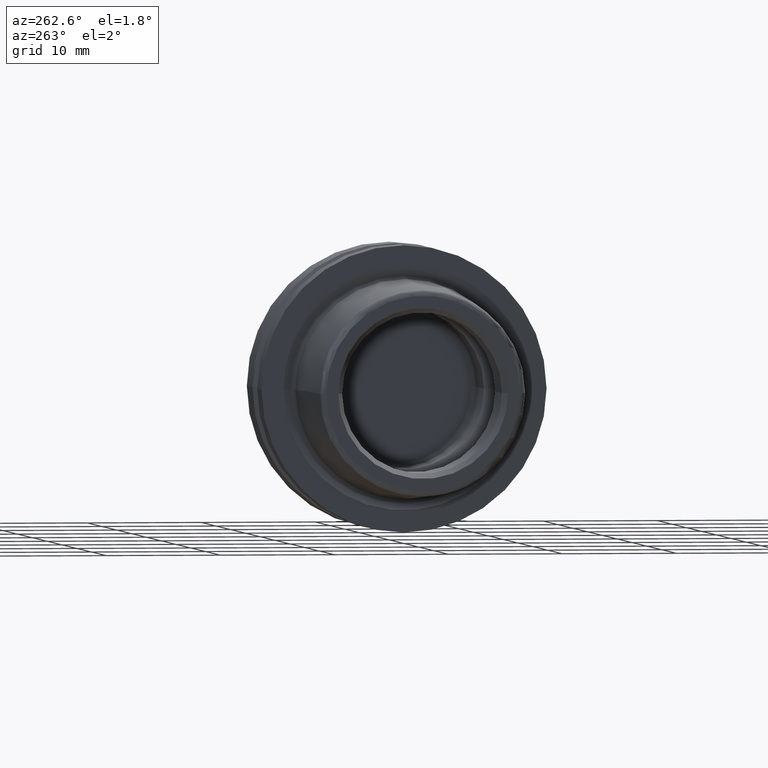
[diagram: clean part render]
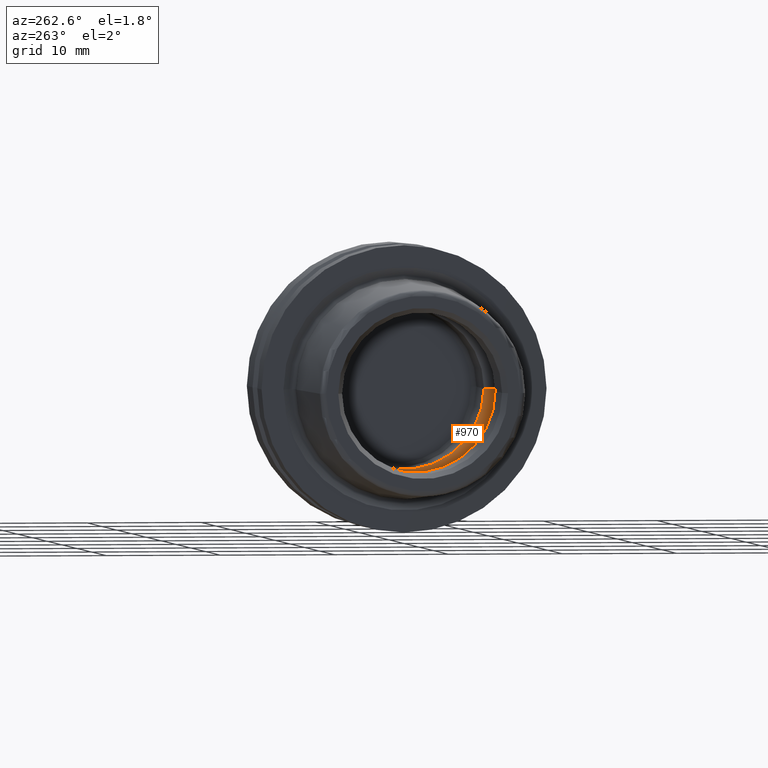
[diagram: same view with one face highlighted and labeled with its STEP entity id]
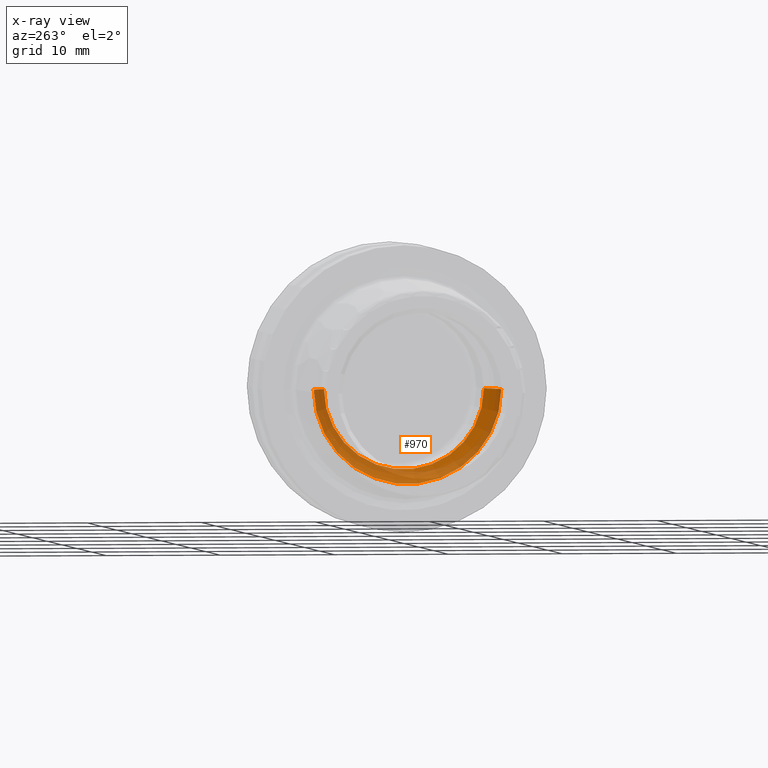
[diagram: x-ray of the same camera — body ghosted, the highlighted face saturated]
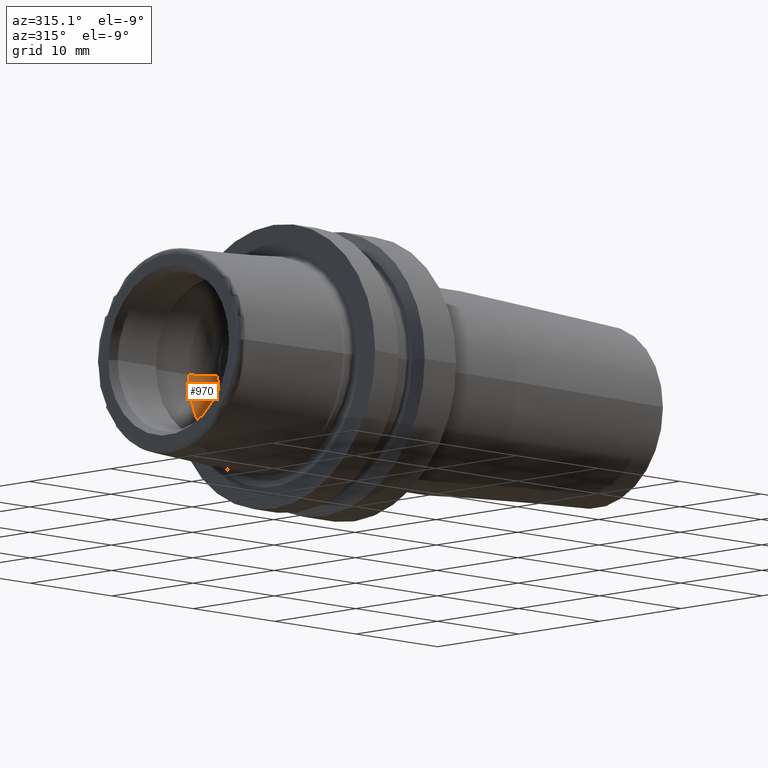
[diagram: same view with one face highlighted and labeled with its STEP entity id]
A machine part, auxiliary view. The second image highlights one B-rep face of the part: STEP entity #970.
The next image is the same camera in x-ray: the body ghosted, the highlighted face saturated — about 67% of this face is hidden behind the body in this view.
A second angle (auxiliary view) of the same face is appended — the face is thin or edge-on in the first view.
In plain terms, the highlighted toroidal blend (fillet) surface has major radius 5.2275 mm and minor (blend) radius 3 mm.
Its self-contained STEP definition (entity closure, byte-faithful):
#161=CARTESIAN_POINT('',(-2.307467549106E0,0.E0,0.E0));
#162=DIRECTION('',(-1.E0,0.E0,0.E0));
#163=DIRECTION('',(0.E0,1.E0,0.E0));
#164=AXIS2_PLACEMENT_3D('',#161,#162,#163);
#170=CARTESIAN_POINT('',(-2.307467549106E0,5.2275E0,0.E0));
#171=DIRECTION('',(0.E0,0.E0,1.E0));
#172=DIRECTION('',(8.024891830354E-1,5.966666666667E-1,0.E0));
#173=AXIS2_PLACEMENT_3D('',#170,#171,#172);
#175=CARTESIAN_POINT('',(1.E-1,0.E0,0.E0));
#176=DIRECTION('',(-1.E0,0.E0,0.E0));
#177=DIRECTION('',(0.E0,1.E0,0.E0));
#178=AXIS2_PLACEMENT_3D('',#175,#176,#177);
#180=CARTESIAN_POINT('',(-2.307467549106E0,-5.2275E0,0.E0));
#181=DIRECTION('',(0.E0,0.E0,-1.E0));
#182=DIRECTION('',(8.024891830354E-1,-5.966666666667E-1,0.E0));
#183=AXIS2_PLACEMENT_3D('',#180,#181,#182);
#658=CARTESIAN_POINT('',(1.E-1,7.0175E0,0.E0));
#659=VERTEX_POINT('',#658);
#660=CARTESIAN_POINT('',(-2.307467549106E0,8.2275E0,0.E0));
#661=VERTEX_POINT('',#660);
#670=CARTESIAN_POINT('',(1.E-1,-7.0175E0,0.E0));
#671=VERTEX_POINT('',#670);
#672=CARTESIAN_POINT('',(-2.307467549106E0,-8.2275E0,0.E0));
#673=VERTEX_POINT('',#672);
#956=CARTESIAN_POINT('',(-2.307467549106E0,0.E0,0.E0));
#957=DIRECTION('',(1.E0,0.E0,0.E0));
#958=DIRECTION('',(0.E0,-1.E0,0.E0));
#959=AXIS2_PLACEMENT_3D('',#956,#957,#958);
#960=TOROIDAL_SURFACE('',#959,5.2275E0,3.E0);
#962=ORIENTED_EDGE('',*,*,#961,.F.);
#964=ORIENTED_EDGE('',*,*,#963,.T.);
#966=ORIENTED_EDGE('',*,*,#965,.T.);
#967=ORIENTED_EDGE('',*,*,#949,.F.);
#968=EDGE_LOOP('',(#962,#964,#966,#967));
#969=FACE_OUTER_BOUND('',#968,.F.);
#970=ADVANCED_FACE('',(#969),#960,.F.);
#165=CIRCLE('',#164,8.2275E0);
#174=CIRCLE('',#173,3.E0);
#179=CIRCLE('',#178,7.0175E0);
#184=CIRCLE('',#183,3.E0);
#949=EDGE_CURVE('',#661,#673,#165,.T.);
#961=EDGE_CURVE('',#659,#661,#174,.T.);
#963=EDGE_CURVE('',#659,#671,#179,.T.);
#965=EDGE_CURVE('',#671,#673,#184,.T.);